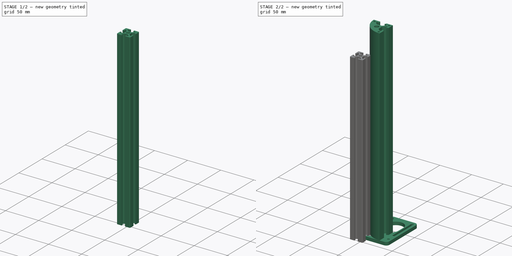
[diagram: build sequence overview — one tinted view per stage of 2, left to right]
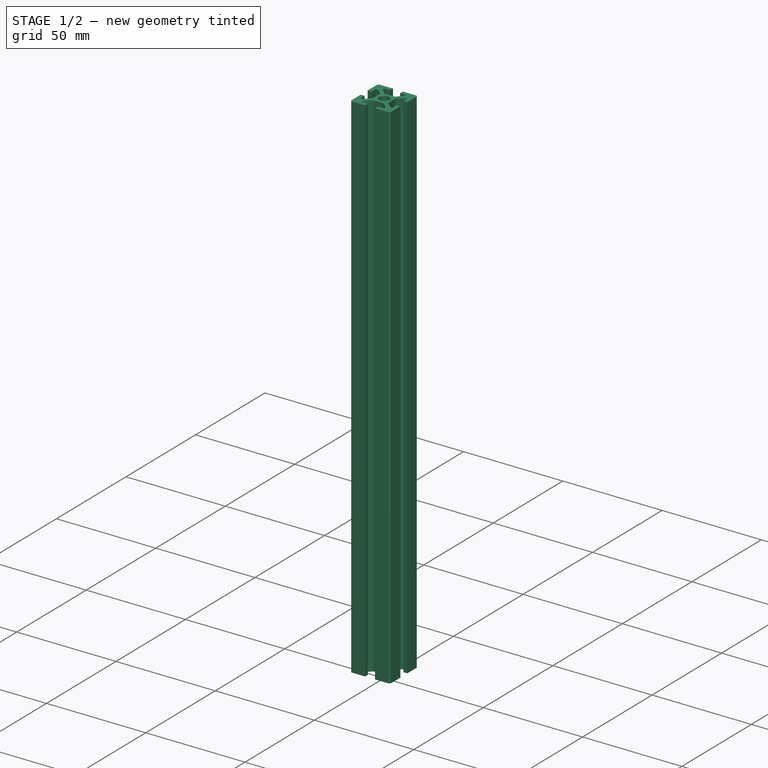
[diagram: stage 1 of 2 — iso view after this stage's code; geometry added in this stage tinted green]
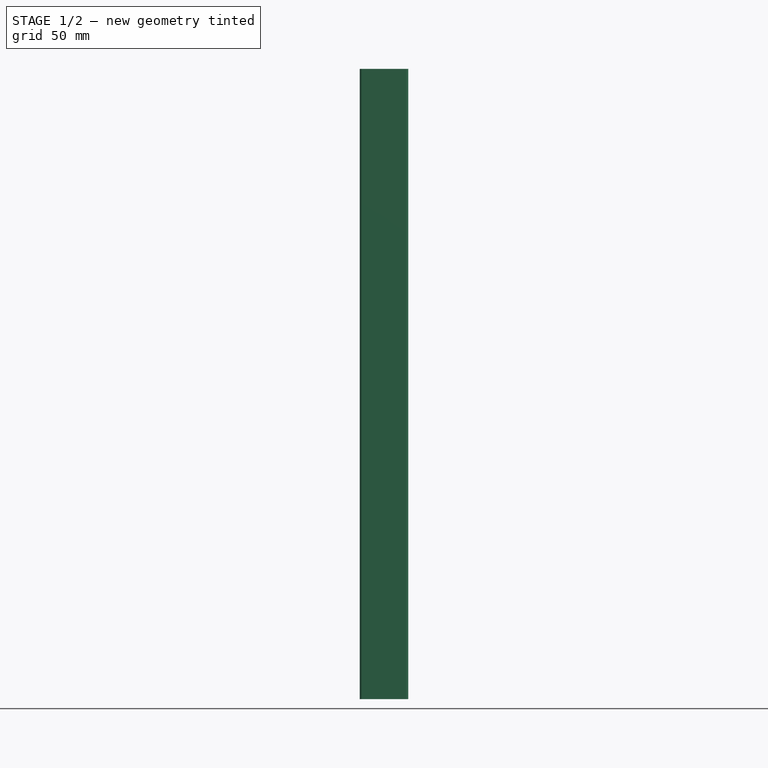
[diagram: stage 1 of 2 — front view after this stage's code; geometry added in this stage tinted green]
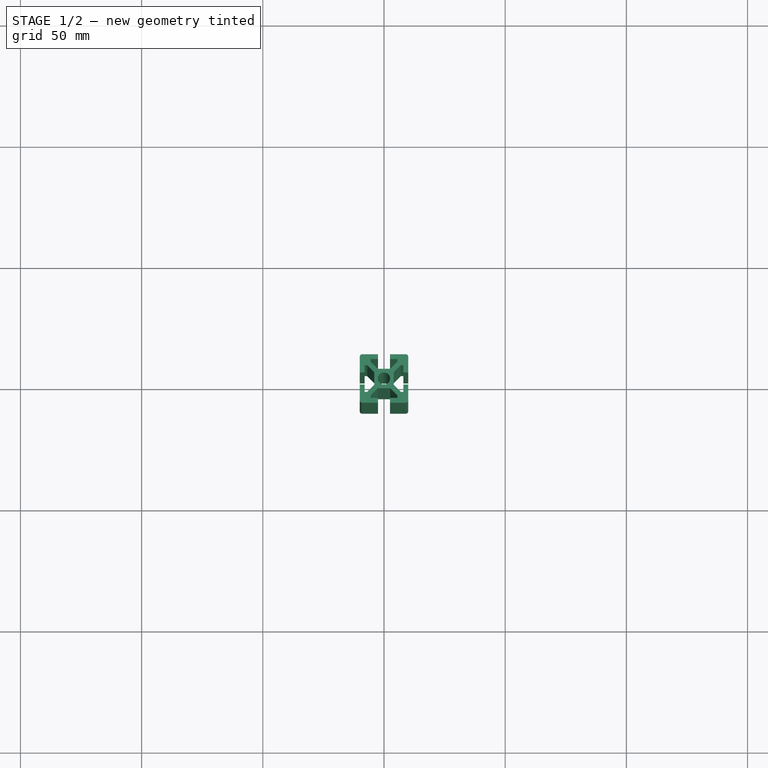
[diagram: stage 1 of 2 — top view after this stage's code; geometry added in this stage tinted green]
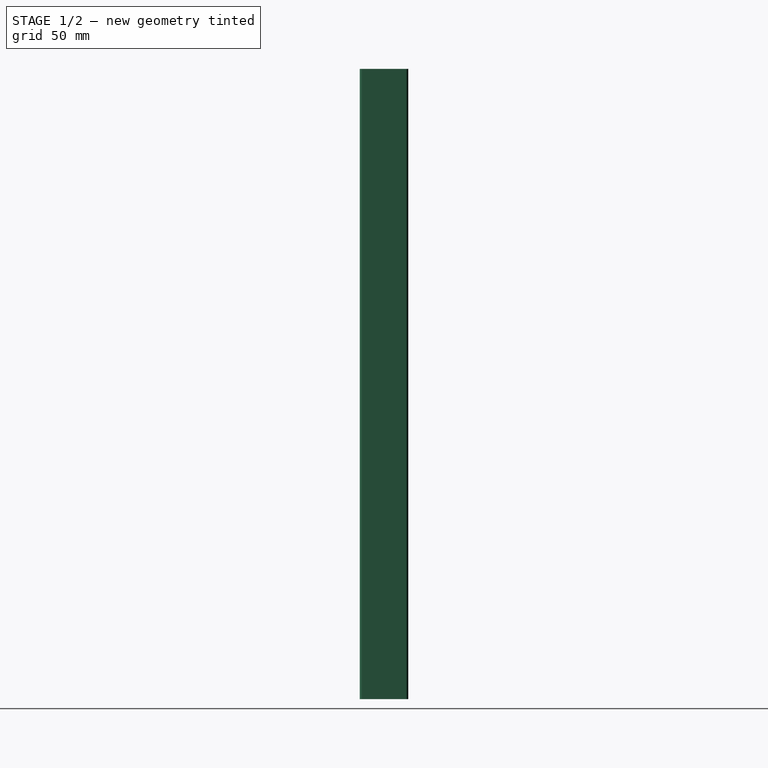
[diagram: stage 1 of 2 — right view after this stage's code; geometry added in this stage tinted green]
FCSTD DOCUMENT  (FreeCAD 0.18R16117 (Git))
Label: OtherParts
License: All rights reserved
LicenseURL: http://en.wikipedia.org/wiki/All_rights_reserved
objects: Sketcher::SketchObject×4, PartDesign::Pad×4, PartDesign::Body×4
note: 16 computed .brp shape members not serialized (recipe doc carries the construction recipe); baked Part::Feature solids carry a one-line shape summary decoded from their .brp

FEATURE [PartDesign::Body] Body001  label="profile3030R"
  Group = -> [Sketch003,Pad001]
  Origin = -> Origin001
  Tip = -> Pad001
FEATURE [Sketcher::SketchObject] Sketch004
  MapMode = 5
  Support = -> [XY_Plane002]
  sketch-geometry (12):
    g0: LineSegment StartX=-1 StartY=0 StartZ=0 EndX=0 EndY=0 EndZ=0
    g1: LineSegment StartX=-1 StartY=-0.63 StartZ=0 EndX=-0.741036 EndY=-0.63 EndZ=0
    g2: ArcOfCircle CenterX=-0.741036 CenterY=-0.78 CenterZ=0 NormalX=0 NormalY=0 NormalZ=1 AngleXU=0 Radius=0.15 StartAngle=0.124936 EndAngle=1.5708
    g3: ArcOfCircle CenterX=0.4 CenterY=-0.636697 CenterZ=0 NormalX=0 NormalY=0 NormalZ=1 AngleXU=0 Radius=1 StartAngle=3.26653 EndAngle=3.57129
    g4: ArcOfCircle CenterX=0 CenterY=-0.82 CenterZ=0 NormalX=0 NormalY=0 NormalZ=1 AngleXU=0 Radius=0.56 StartAngle=3.57129 EndAngle=5.85349
    g5: LineSegment [constr] StartX=0 StartY=0 StartZ=0 EndX=0 EndY=-1.38 EndZ=0
    g6: ArcOfCircle CenterX=-0.4 CenterY=-0.636697 CenterZ=0 NormalX=0 NormalY=0 NormalZ=1 AngleXU=0 Radius=1 StartAngle=5.85349 EndAngle=6.15825
    g7: ArcOfCircle CenterX=0.741036 CenterY=-0.78 CenterZ=0 NormalX=0 NormalY=0 NormalZ=1 AngleXU=0 Radius=0.15 StartAngle=1.5708 EndAngle=3.01666
    g8: LineSegment StartX=0.741036 StartY=-0.63 StartZ=0 EndX=1 EndY=-0.63 EndZ=0
    g9: LineSegment StartX=0 StartY=0 StartZ=0 EndX=1 EndY=0 EndZ=0
    g10: LineSegment StartX=-1 StartY=0 StartZ=0 EndX=-1 EndY=-0.63 EndZ=0
    g11: LineSegment StartX=1 StartY=0 StartZ=0 EndX=1 EndY=-0.63 EndZ=0
  constraints (34):
    c: Horizontal(g1)
    c: DistanceY(g1,g0) = 0.63
    c: Distance(g0) = 1
    c: Radius(g3) = 1
    c: Radius(g2) = 0.15
    c: Radius(g4) = 0.56
    c: DistanceX(g0,g3) = 0.4
    c: Tangent(g3,g2) = 1.5708
    c: Tangent(g4,g3) = -1.5708
    c: Vertical(g1,g0)
    c: Tangent(g2,g1) = 1.5708
    c: Coincident(g5,g0)
    c: PointOnObject(g4,g5)
    c: Vertical(g5)
    c: Horizontal(g8)
    c: Tangent(g8,g7) = 1.5708
    c: Tangent(g7,g6) = 1.5708
    c: DistanceX(g6,g0) = 0.4
    c: Radius(g7) = 0.15
    c: Horizontal(g1,g7)
    c: Coincident(g9,g0)
    c: Horizontal(g9)
    c: Distance(g9,g0) = 1
    c: Vertical(g9,g8)
    c: Radius(g6) = 1
    c: Tangent(g4,g6) = -1.5708
    c: PointOnObject(g5,g4)
    c: DistanceY(g5,g0) = 1.38
    c: Coincident(g10,g0)
    c: Coincident(g10,g1)
    c: Coincident(g11,g9)
    c: Coincident(g11,g8)
    c: Coincident(g0,g-1)
    c: Horizontal(g0)
FEATURE [PartDesign::Pad] Pad002
  Length = 6
  Length2 = 100
  Profile = -> Sketch004
  Type = 0
FEATURE [PartDesign::Body] Body002  label="GT2Belt"
  Group = -> [Sketch004,Pad002]
  Origin = -> Origin002
  Tip = -> Pad002
FEATURE [Sketcher::SketchObject] Sketch005  label="profile2020Sketch"
  MapMode = 5
  sketch-geometry (49):
    g0: LineSegment StartX=-4 StartY=-2.58579 StartZ=0 EndX=-4 EndY=2.58579 EndZ=0
    g1: LineSegment StartX=2.58579 StartY=4 StartZ=0 EndX=-2.58579 EndY=4 EndZ=0
    g2: LineSegment StartX=-4 StartY=2.58579 StartZ=0 EndX=-6.91421 EndY=5.5 EndZ=0
    g3: LineSegment StartX=-2.58579 StartY=4 StartZ=0 EndX=-5.5 EndY=6.91421 EndZ=0
    g4: LineSegment StartX=-6.91421 StartY=5.5 StartZ=0 EndX=-8 EndY=5.5 EndZ=0
    g5: LineSegment StartX=-8 StartY=5.5 StartZ=0 EndX=-8 EndY=2.5 EndZ=0
    g6: LineSegment StartX=-5.5 StartY=6.91421 StartZ=0 EndX=-5.5 EndY=8 EndZ=0
    g7: LineSegment StartX=-5.5 StartY=8 StartZ=0 EndX=-2.5 EndY=8 EndZ=0
    g8: LineSegment StartX=-8 StartY=2.5 StartZ=0 EndX=-10 EndY=2.5 EndZ=0
    g9: LineSegment StartX=-2.5 StartY=8 StartZ=0 EndX=-2.5 EndY=10 EndZ=0
    g10: LineSegment StartX=-2.5 StartY=10 StartZ=0 EndX=-9 EndY=10 EndZ=0
    g11: LineSegment StartX=-10 StartY=2.5 StartZ=0 EndX=-10 EndY=9 EndZ=0
    g12: ArcOfCircle CenterX=-9 CenterY=9 CenterZ=0 NormalX=0 NormalY=0 NormalZ=1 AngleXU=0 Radius=1 StartAngle=1.5708 EndAngle=3.14159
    g13: Circle CenterX=0 CenterY=0 CenterZ=0 NormalX=0 NormalY=0 NormalZ=1 AngleXU=0 Radius=2.5
    g14: LineSegment StartX=4 StartY=2.58579 StartZ=0 EndX=4 EndY=-2.58579 EndZ=0
    g15: LineSegment StartX=2.58579 StartY=4 StartZ=0 EndX=5.5 EndY=6.91421 EndZ=0
    g16: LineSegment StartX=5.5 StartY=6.91421 StartZ=0 EndX=5.5 EndY=8 EndZ=0
    g17: LineSegment StartX=5.5 StartY=8 StartZ=0 EndX=2.5 EndY=8 EndZ=0
    g18: LineSegment StartX=2.5 StartY=8 StartZ=0 EndX=2.5 EndY=10 EndZ=0
    g19: LineSegment StartX=4 StartY=2.58579 StartZ=0 EndX=6.91421 EndY=5.5 EndZ=0
    g20: LineSegment StartX=6.91421 StartY=5.5 StartZ=0 EndX=8 EndY=5.5 EndZ=0
    g21: LineSegment StartX=8 StartY=5.5 StartZ=0 EndX=8 EndY=2.5 EndZ=0
    g22: LineSegment StartX=8 StartY=2.5 StartZ=0 EndX=10 EndY=2.5 EndZ=0
    g23: LineSegment StartX=10 StartY=2.5 StartZ=0 EndX=10 EndY=9 EndZ=0
    g24: LineSegment StartX=2.5 StartY=10 StartZ=0 EndX=9 EndY=10 EndZ=0
    g25: ArcOfCircle CenterX=9 CenterY=9 CenterZ=0 NormalX=0 NormalY=0 NormalZ=1 AngleXU=0 Radius=1 StartAngle=5.30563e-07 EndAngle=1.5708
    g26: LineSegment StartX=4 StartY=-2.58579 StartZ=0 EndX=6.91421 EndY=-5.5 EndZ=0
    g27: LineSegment StartX=6.91421 StartY=-5.5 StartZ=0 EndX=8 EndY=-5.5 EndZ=0
    g28: LineSegment StartX=8 StartY=-5.5 StartZ=0 EndX=8 EndY=-2.5 EndZ=0
    g29: LineSegment StartX=8 StartY=-2.5 StartZ=0 EndX=10 EndY=-2.5 EndZ=0
    g30: LineSegment StartX=10 StartY=-2.5 StartZ=0 EndX=10 EndY=-9 EndZ=0
    g31: LineSegment StartX=9 StartY=-10 StartZ=0 EndX=2.5 EndY=-10 EndZ=0
    g32: LineSegment StartX=2.5 StartY=-10 StartZ=0 EndX=2.5 EndY=-8 EndZ=0
    g33: LineSegment StartX=2.5 StartY=-8 StartZ=0 EndX=5.5 EndY=-8 EndZ=0
    g34: LineSegment StartX=5.5 StartY=-8 StartZ=0 EndX=5.5 EndY=-6.91421 EndZ=0
    g35: LineSegment StartX=5.5 StartY=-6.91421 StartZ=0 EndX=2.58579 EndY=-4 EndZ=0
    g36: LineSegment StartX=2.58579 StartY=-4 StartZ=0 EndX=-2.58579 EndY=-4 EndZ=0
    g37: LineSegment StartX=-2.58579 StartY=-4 StartZ=0 EndX=-5.5 EndY=-6.91421 EndZ=0
    g38: LineSegment StartX=-5.5 StartY=-6.91421 StartZ=0 EndX=-5.5 EndY=-8 EndZ=0
    g39: LineSegment StartX=-5.5 StartY=-8 StartZ=0 EndX=-2.5 EndY=-8 EndZ=0
    g40: LineSegment StartX=-2.5 StartY=-8 StartZ=0 EndX=-2.5 EndY=-10 EndZ=0
    g41: LineSegment StartX=-2.5 StartY=-10 StartZ=0 EndX=-9 EndY=-10 EndZ=0
    g42: ArcOfCircle CenterX=9 CenterY=-9 CenterZ=0 NormalX=0 NormalY=0 NormalZ=1 AngleXU=0 Radius=1 StartAngle=4.71239 EndAngle=6.28318
    g43: LineSegment StartX=-4 StartY=-2.58579 StartZ=0 EndX=-6.91421 EndY=-5.5 EndZ=0
    g44: LineSegment StartX=-6.91421 StartY=-5.5 StartZ=0 EndX=-8 EndY=-5.5 EndZ=0
    g45: LineSegment StartX=-8 StartY=-5.5 StartZ=0 EndX=-8 EndY=-2.5 EndZ=0
    g46: LineSegment StartX=-8 StartY=-2.5 StartZ=0 EndX=-10 EndY=-2.5 EndZ=0
    g47: LineSegment StartX=-10 StartY=-2.5 StartZ=0 EndX=-10 EndY=-9 EndZ=0
    g48: ArcOfCircle CenterX=-9 CenterY=-9 CenterZ=0 NormalX=0 NormalY=0 NormalZ=1 AngleXU=0 Radius=1 StartAngle=3.14159 EndAngle=4.71239
  constraints (114):
    c: DistanceX(g-1,g0) = -4
    c: Vertical(g0)
    c: Equal(g0,g1)
    c: Coincident(g0,g2)
    c: Angle(g2,g0) = 2.35619
    c: Coincident(g3,g1)
    c: Parallel(g2,g3)
    c: Equal(g3,g2)
    c: Coincident(g4,g2)
    c: Horizontal(g4)
    c: Coincident(g4,g5)
    c: Vertical(g5)
    c: Coincident(g6,g3)
    c: Vertical(g6)
    c: Equal(g4,g6)
    c: Coincident(g7,g6)
    c: Horizontal(g7)
    c: Equal(g7,g5)
    c: Coincident(g8,g5)
    c: Horizontal(g8)
    c: Coincident(g9,g7)
    c: Vertical(g9)
    c: DistanceX(g-1,g7) = -2.5
    c: DistanceY(g9) = 2
    c: Coincident(g10,g9)
    c: Horizontal(g10)
    c: Coincident(g11,g8)
    c: Vertical(g11)
    c: Equal(g10,g11)
    c: DistanceY(g-1,g10) = 10
    c: Coincident(g12,g11)
    c: Radius(g12) = 1
    c: Tangent(g12,g11)
    c: Equal(g8,g9)
    c: Distance(g1,g0) = 2
    c: DistanceX(g-1,g3) = -5.5
    c: Coincident(g13,g-1)
    c: Radius(g13) = 2.5
    c: DistanceY(g-1,g1) = 4
    c: Symmetric(g14,g0,g-2)
    c: Symmetric(g0,g14,g-2)
    c: Coincident(g15,g1)
    c: Symmetric(g1,g1,g-2)
    c: Symmetric(g15,g3,g-2)
    c: Coincident(g16,g15)
    c: Symmetric(g16,g6,g-2)
    c: Coincident(g17,g16)
    c: Symmetric(g17,g7,g-2)
    c: Coincident(g18,g17)
    c: Symmetric(g18,g9,g-2)
    c: Coincident(g19,g20)
    c: Coincident(g20,g21)
    c: Coincident(g21,g22)
    c: Coincident(g22,g23)
    c: Coincident(g19,g14)
    c: Symmetric(g19,g2,g-2)
    c: Symmetric(g20,g4,g-2)
    c: Symmetric(g21,g5,g-2)
    c: Symmetric(g22,g8,g-2)
    c: Symmetric(g23,g11,g-2)
    c: Coincident(g24,g18)
    c: Symmetric(g24,g10,g-2)
    c: Tangent(g25,g24) = 1.5708
    c: Radius(g25) = 1
    c: Coincident(g25,g23)
    c: Coincident(g26,g27)
    c: Coincident(g27,g28)
    c: Coincident(g28,g29)
    c: Coincident(g29,g30)
    c: Coincident(g26,g14)
    c: Symmetric(g26,g19,g-1)
    c: Symmetric(g27,g20,g-1)
    c: Symmetric(g28,g21,g-1)
    c: Symmetric(g29,g22,g-1)
    c: Symmetric(g30,g23,g-1)
    c: Coincident(g31,g32)
    c: Coincident(g32,g33)
    c: Coincident(g33,g34)
    c: Coincident(g34,g35)
    c: Coincident(g35,g36)
    c: Coincident(g36,g37)
    c: Coincident(g37,g38)
    c: Coincident(g38,g39)
    c: Coincident(g39,g40)
    c: Coincident(g40,g41)
    c: Symmetric(g40,g9,g-1)
    c: Symmetric(g39,g7,g-1)
    c: Symmetric(g38,g6,g-1)
    c: Symmetric(g37,g3,g-1)
    c: Symmetric(g36,g1,g-1)
    c: Symmetric(g35,g1,g-1)
    c: Symmetric(g34,g15,g-1)
    c: Symmetric(g33,g16,g-1)
    c: Symmetric(g32,g17,g-1)
    c: Symmetric(g31,g18,g-1)
    c: Symmetric(g31,g24,g-1)
    c: Radius(g42) = 1
    c: Coincident(g42,g31)
    c: Coincident(g42,g30)
    c: Symmetric(g41,g10,g-1)
    c: Coincident(g43,g44)
    c: Coincident(g44,g45)
    c: Coincident(g45,g46)
    c: Coincident(g46,g47)
    c: Coincident(g0,g43)
    c: Symmetric(g43,g2,g-1)
    c: Symmetric(g44,g4,g-1)
    c: Symmetric(g45,g5,g-1)
    c: Symmetric(g46,g8,g-1)
    c: Symmetric(g47,g11,g-1)
    c: Coincident(g48,g47)
    c: Coincident(g48,g41)
    c: Tangent(g48,g47)
    c: Tangent(g12,g10) = -1.5708
FEATURE [PartDesign::Pad] Pad003
  Length = 260
  Length2 = 100
  Profile = -> Sketch005
  Type = 0
FEATURE [PartDesign::Body] Body003  label="profile2020"
  Group = -> [Sketch005,Pad003]
  Origin = -> Origin003
  Tip = -> Pad003
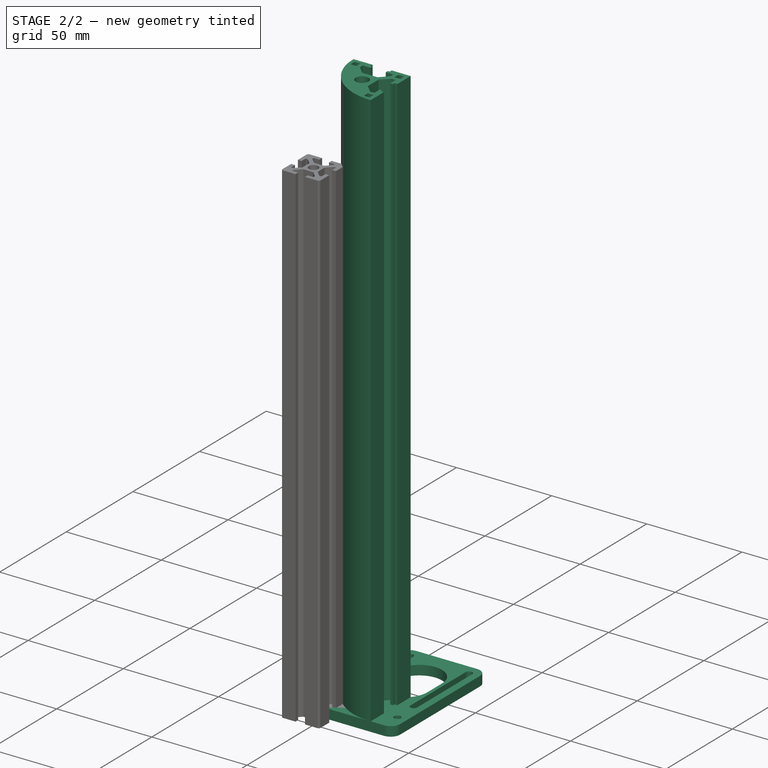
[diagram: stage 2 of 2 — iso view after this stage's code; geometry added in this stage tinted green]
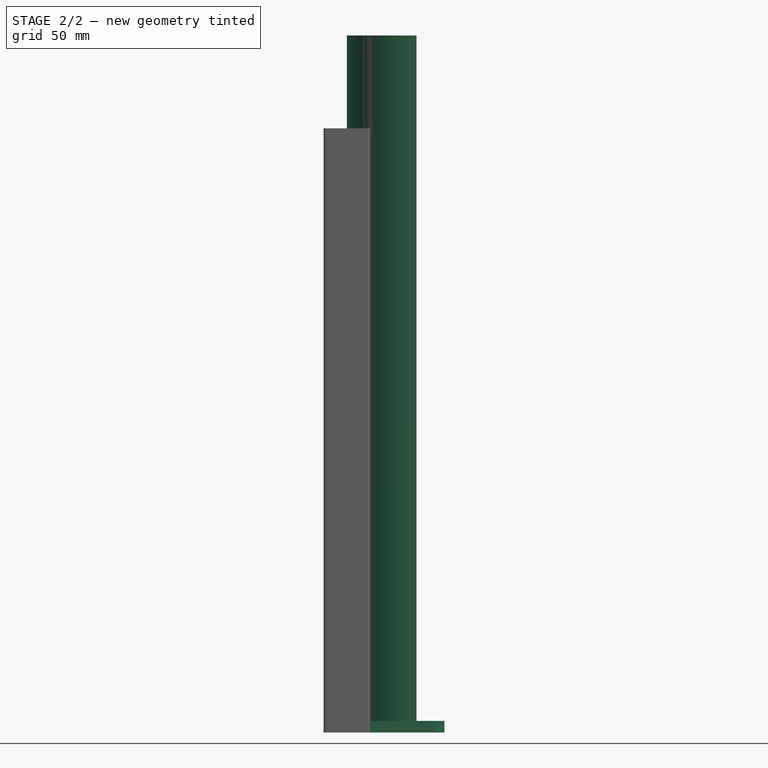
[diagram: stage 2 of 2 — front view after this stage's code; geometry added in this stage tinted green]
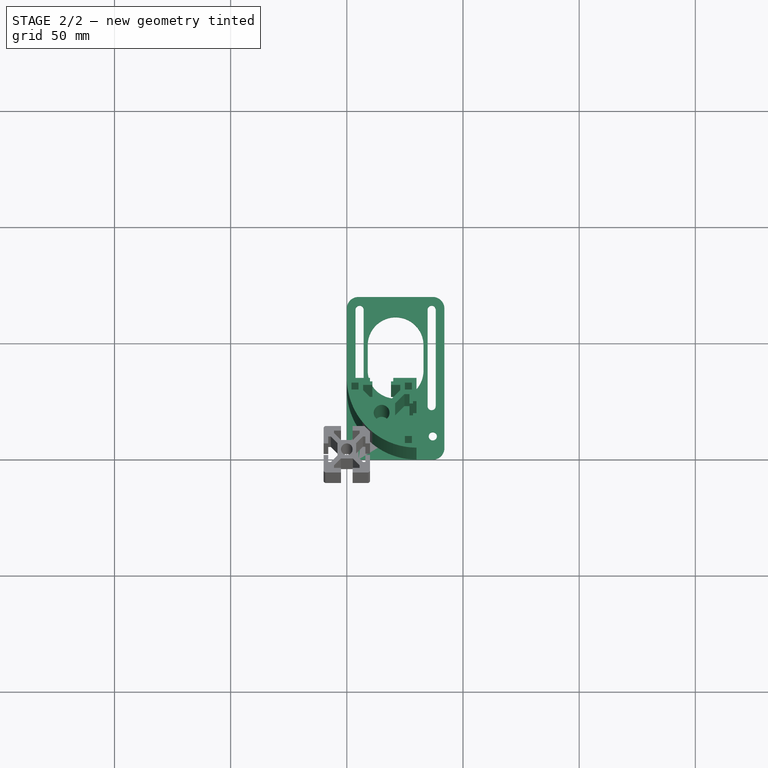
[diagram: stage 2 of 2 — top view after this stage's code; geometry added in this stage tinted green]
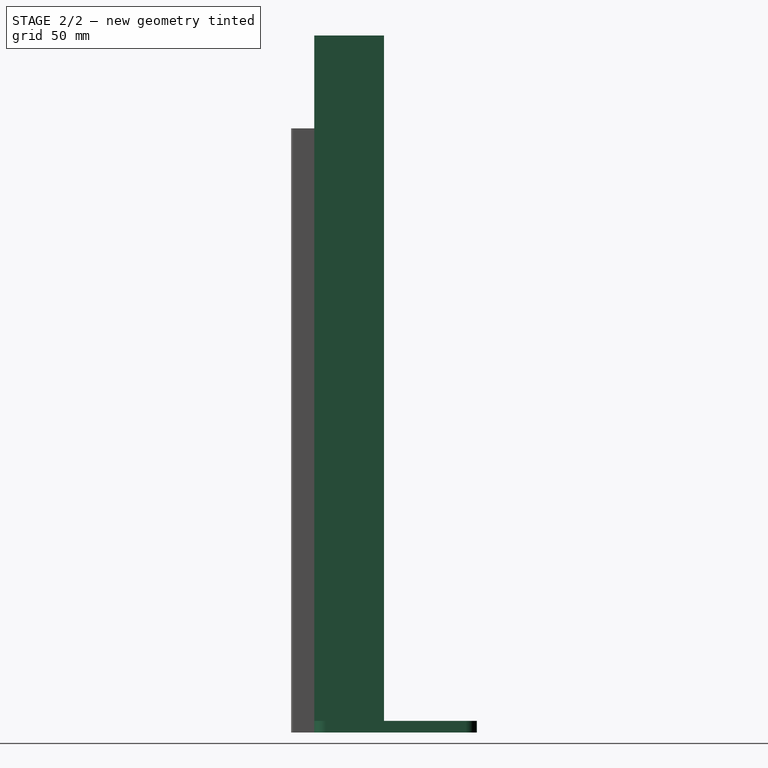
[diagram: stage 2 of 2 — right view after this stage's code; geometry added in this stage tinted green]
FEATURE [Sketcher::SketchObject] Sketch  label="NemaMountSketch"
  MapMode = 5
  Support = -> [XY_Plane]
  sketch-geometry (26):
    g0: LineSegment StartX=5 StartY=70 StartZ=0 EndX=37 EndY=70 EndZ=0
    g1: ArcOfCircle CenterX=37 CenterY=65 CenterZ=0 NormalX=0 NormalY=0 NormalZ=1 AngleXU=0 Radius=5 StartAngle=1e-16 EndAngle=1.5708
    g2: LineSegment StartX=42 StartY=65 StartZ=0 EndX=42 EndY=5 EndZ=0
    g3: ArcOfCircle CenterX=37 CenterY=5 CenterZ=0 NormalX=0 NormalY=0 NormalZ=1 AngleXU=0 Radius=5 StartAngle=4.71239 EndAngle=6.28319
    g4: LineSegment StartX=37 StartY=0 StartZ=0 EndX=5 EndY=0 EndZ=0
    g5: ArcOfCircle CenterX=5 CenterY=5 CenterZ=0 NormalX=0 NormalY=0 NormalZ=1 AngleXU=0 Radius=5 StartAngle=3.14159 EndAngle=4.71239
    g6: LineSegment StartX=0 StartY=5 StartZ=0 EndX=0 EndY=65 EndZ=0
    g7: ArcOfCircle CenterX=5 CenterY=65 CenterZ=0 NormalX=0 NormalY=0 NormalZ=1 AngleXU=0 Radius=5 StartAngle=1.5708 EndAngle=3.14159
    g8: LineSegment [constr] StartX=0 StartY=20 StartZ=0 EndX=42 EndY=20 EndZ=0
    g9: ArcOfCircle CenterX=5.5 CenterY=64.5 CenterZ=0 NormalX=0 NormalY=0 NormalZ=1 AngleXU=0 Radius=1.75 StartAngle=0 EndAngle=3.14159
    g10: ArcOfCircle CenterX=5.5 CenterY=23 CenterZ=0 NormalX=0 NormalY=0 NormalZ=1 AngleXU=0 Radius=1.75 StartAngle=3.14159 EndAngle=6.28319
    g11: LineSegment StartX=3.75 StartY=64.5 StartZ=0 EndX=3.75 EndY=23 EndZ=0
    g12: LineSegment StartX=7.25 StartY=64.5 StartZ=0 EndX=7.25 EndY=23 EndZ=0
    g13: LineSegment [constr] StartX=21 StartY=70 StartZ=0 EndX=21 EndY=20 EndZ=0
    g14: ArcOfCircle CenterX=36.5 CenterY=64.5 CenterZ=0 NormalX=0 NormalY=0 NormalZ=1 AngleXU=0 Radius=1.75 StartAngle=3.3e-15 EndAngle=3.14159
    g15: ArcOfCircle CenterX=36.5 CenterY=23 CenterZ=0 NormalX=0 NormalY=0 NormalZ=1 AngleXU=0 Radius=1.75 StartAngle=3.14159 EndAngle=6.28319
    g16: LineSegment StartX=38.25 StartY=64.5 StartZ=0 EndX=38.25 EndY=23 EndZ=0
    g17: LineSegment StartX=34.75 StartY=64.5 StartZ=0 EndX=34.75 EndY=23 EndZ=0
    g18: Circle CenterX=5 CenterY=10 CenterZ=0 NormalX=0 NormalY=0 NormalZ=1 AngleXU=0 Radius=1.75
    g19: Circle CenterX=37 CenterY=10 CenterZ=0 NormalX=0 NormalY=0 NormalZ=1 AngleXU=0 Radius=1.75
    g20: Circle CenterX=21 CenterY=10 CenterZ=0 NormalX=0 NormalY=0 NormalZ=1 AngleXU=0 Radius=1.75
    g21: ArcOfCircle CenterX=21 CenterY=49.25 CenterZ=0 NormalX=0 NormalY=0 NormalZ=1 AngleXU=0 Radius=12 StartAngle=1e-16 EndAngle=3.14159
    g22: ArcOfCircle CenterX=21 CenterY=38.25 CenterZ=0 NormalX=0 NormalY=0 NormalZ=1 AngleXU=0 Radius=12 StartAngle=3.14159 EndAngle=6.28319
    g23: LineSegment StartX=9 StartY=49.25 StartZ=0 EndX=9 EndY=38.25 EndZ=0
    g24: LineSegment StartX=33 StartY=49.25 StartZ=0 EndX=33 EndY=38.25 EndZ=0
    g25: LineSegment [constr] StartX=9 StartY=43.75 StartZ=0 EndX=5.5 EndY=43.75 EndZ=0
  constraints (65):
    c: Horizontal(g0)
    c: Tangent(g0,g1) = 1.5708
    c: Tangent(g1,g2) = 1.5708
    c: Tangent(g2,g3) = 1.5708
    c: Tangent(g3,g4) = 1.5708
    c: Tangent(g4,g5) = 1.5708
    c: Tangent(g5,g6) = 1.5708
    c: Tangent(g6,g7) = 1.5708
    c: Tangent(g7,g0) = 1.5708
    c: Vertical(g6)
    c: Vertical(g2)
    c: Horizontal(g4)
    c: Radius(g7) = 5
    c: Equal(g7,g1)
    c: Equal(g7,g3)
    c: Equal(g7,g5)
    c: PointOnObject(g4,g-1)
    c: PointOnObject(g5,g-2)
    c: DistanceX(g5,g2) = 42
    c: PointOnObject(g8,g6)
    c: PointOnObject(g8,g2)
    c: DistanceY(g-1,g8) = 20
    c: DistanceY(g8,g0) = 50
    c: Tangent(g9,g12) = 1.5708
    c: Tangent(g9,g11) = -1.5708
    c: Tangent(g11,g10) = -1.5708
    c: Tangent(g12,g10) = 1.5708
    c: Vertical(g11)
    c: Equal(g9,g10)
    c: Diameter(g9) = 3.5
    c: PointOnObject(g13,g0)
    c: Vertical(g13)
    c: Symmetric(g8,g8,g13)
    c: Horizontal(g8)
    c: Tangent(g14,g17) = -1.5708
    c: Tangent(g14,g16) = 1.5708
    c: Tangent(g16,g15) = 1.5708
    c: Tangent(g17,g15) = -1.5708
    c: Vertical(g16)
    c: Diameter(g14) = 3.5
    c: DistanceX(g10,g15) = 31
    c: Symmetric(g10,g15,g13)
    c: DistanceY(g9,g0) = 5.5
    c: Symmetric(g14,g9,g13)
    c: Diameter(g18) = 3.5
    c: Equal(g18,g19)
    c: Equal(g18,g20)
    c: Symmetric(g18,g19,g20)
    c: Horizontal(g18,g20)
    c: DistanceX(g5,g18) = 5
    c: DistanceX(g19,g2) = 5
    c: DistanceY(g4,g18) = 10
    c: Tangent(g21,g24) = 1.5708
    c: Tangent(g21,g23) = -1.5708
    c: Tangent(g23,g22) = -1.5708
    c: Tangent(g24,g22) = 1.5708
    c: Vertical(g23)
    c: Equal(g21,g22)
    c: PointOnObject(g21,g13)
    c: DistanceY(g22,g21) = 11
    c: Diameter(g21) = 24
    c: Horizontal(g25)
    c: Symmetric(g21,g22,g25)
    c: Symmetric(g9,g10,g25)
    c: DistanceY(g8,g10) = 3
FEATURE [PartDesign::Pad] Pad  label="NemaMountPad"
  Length = 5
  Length2 = 100
  Profile = -> Sketch
  Type = 0
FEATURE [PartDesign::Body] Body  label="NemaMount"
  Group = -> [Sketch,Pad]
  Origin = -> Origin
  Tip = -> Pad
FEATURE [Sketcher::SketchObject] Sketch003
  MapMode = 5
  Support = -> [XY_Plane001]
  sketch-geometry (44):
    g0: ArcOfCircle CenterX=30 CenterY=30 CenterZ=0 NormalX=0 NormalY=0 NormalZ=1 AngleXU=0 Radius=30 StartAngle=3.14159 EndAngle=4.71239
    g1: LineSegment StartX=0 StartY=30 StartZ=0 EndX=10 EndY=30 EndZ=0
    g2: LineSegment StartX=30 StartY=0 StartZ=0 EndX=30 EndY=10 EndZ=0
    g3: LineSegment StartX=10 StartY=30 StartZ=0 EndX=10 EndY=28.5 EndZ=0
    g4: LineSegment StartX=10 StartY=28.5 StartZ=0 EndX=11 EndY=28.5 EndZ=0
    g5: LineSegment StartX=11 StartY=28.5 StartZ=0 EndX=11 EndY=27 EndZ=0
    g6: LineSegment StartX=11 StartY=27 StartZ=0 EndX=7 EndY=27 EndZ=0
    g7: LineSegment StartX=7 StartY=27 StartZ=0 EndX=7 EndY=24.8 EndZ=0
    g8: LineSegment StartX=7 StartY=24.8 StartZ=0 EndX=11 EndY=20.8 EndZ=0
    g9: LineSegment StartX=11 StartY=20.8 StartZ=0 EndX=19 EndY=20.8 EndZ=0
    g10: LineSegment StartX=19 StartY=20.8 StartZ=0 EndX=23 EndY=24.8 EndZ=0
    g11: LineSegment StartX=23 StartY=24.8 StartZ=0 EndX=23 EndY=27 EndZ=0
    g12: LineSegment StartX=23 StartY=27 StartZ=0 EndX=19 EndY=27 EndZ=0
    g13: LineSegment StartX=19 StartY=27 StartZ=0 EndX=19 EndY=28.5 EndZ=0
    g14: LineSegment StartX=19 StartY=28.5 StartZ=0 EndX=20 EndY=28.5 EndZ=0
    g15: LineSegment StartX=20 StartY=28.5 StartZ=0 EndX=20 EndY=30 EndZ=0
    g16: LineSegment StartX=20 StartY=30 StartZ=0 EndX=30 EndY=30 EndZ=0
    g17: LineSegment StartX=30 StartY=30 StartZ=0 EndX=30 EndY=20 EndZ=0
    g18: LineSegment StartX=30 StartY=20 StartZ=0 EndX=28.5 EndY=20 EndZ=0
    g19: LineSegment StartX=28.5 StartY=20 StartZ=0 EndX=28.5 EndY=19 EndZ=0
    g20: LineSegment StartX=28.5 StartY=19 StartZ=0 EndX=27 EndY=19 EndZ=0
    g21: LineSegment StartX=27 StartY=19 StartZ=0 EndX=27 EndY=23 EndZ=0
    g22: LineSegment StartX=27 StartY=23 StartZ=0 EndX=24.8 EndY=23 EndZ=0
    g23: LineSegment StartX=24.8 StartY=23 StartZ=0 EndX=20.8 EndY=19 EndZ=0
    g24: LineSegment StartX=20.8 StartY=19 StartZ=0 EndX=20.8 EndY=11 EndZ=0
    g25: LineSegment StartX=20.8 StartY=11 StartZ=0 EndX=24.8 EndY=7 EndZ=0
    g26: LineSegment StartX=24.8 StartY=7 StartZ=0 EndX=27 EndY=7 EndZ=0
    g27: LineSegment StartX=27 StartY=7 StartZ=0 EndX=27 EndY=11 EndZ=0
    g28: LineSegment StartX=27 StartY=11 StartZ=0 EndX=28.5 EndY=11 EndZ=0
    g29: LineSegment StartX=28.5 StartY=11 StartZ=0 EndX=28.5 EndY=10 EndZ=0
    g30: LineSegment StartX=28.5 StartY=10 StartZ=0 EndX=30 EndY=10 EndZ=0
    g31: Circle CenterX=15 CenterY=15 CenterZ=0 NormalX=0 NormalY=0 NormalZ=1 AngleXU=0 Radius=3.4
    g32: LineSegment StartX=2 StartY=28 StartZ=0 EndX=5 EndY=28 EndZ=0
    g33: LineSegment StartX=5 StartY=28 StartZ=0 EndX=5 EndY=25 EndZ=0
    g34: LineSegment StartX=5 StartY=25 StartZ=0 EndX=2 EndY=25 EndZ=0
    g35: LineSegment StartX=2 StartY=25 StartZ=0 EndX=2 EndY=28 EndZ=0
    g36: LineSegment StartX=25 StartY=28 StartZ=0 EndX=28 EndY=28 EndZ=0
    g37: LineSegment StartX=28 StartY=28 StartZ=0 EndX=28 EndY=25 EndZ=0
    g38: LineSegment StartX=28 StartY=25 StartZ=0 EndX=25 EndY=25 EndZ=0
    g39: LineSegment StartX=25 StartY=25 StartZ=0 EndX=25 EndY=28 EndZ=0
    g40: LineSegment StartX=25 StartY=5 StartZ=0 EndX=28 EndY=5 EndZ=0
    g41: LineSegment StartX=28 StartY=5 StartZ=0 EndX=28 EndY=2 EndZ=0
    g42: LineSegment StartX=28 StartY=2 StartZ=0 EndX=25 EndY=2 EndZ=0
    g43: LineSegment StartX=25 StartY=2 StartZ=0 EndX=25 EndY=5 EndZ=0
  constraints (134):
    c: Coincident(g1,g0)
    c: Perpendicular(g0,g1)
    c: Horizontal(g1)
    c: Coincident(g2,g0)
    c: Vertical(g2)
    c: Perpendicular(g0,g2)
    c: Radius(g0) = 30
    c: Distance(g1) = 10
    c: Equal(g1,g2)
    c: Coincident(g3,g1)
    c: Vertical(g3)
    c: Coincident(g4,g3)
    c: Horizontal(g4)
    c: Coincident(g5,g4)
    c: Vertical(g5)
    c: Coincident(g6,g5)
    c: Horizontal(g6)
    c: Coincident(g7,g6)
    c: Vertical(g7)
    c: Coincident(g8,g7)
    c: Coincident(g9,g8)
    c: Horizontal(g9)
    c: Vertical(g11)
    c: Coincident(g12,g11)
    c: Horizontal(g12)
    c: Vertical(g13)
    c: Horizontal(g14)
    c: Coincident(g15,g14)
    c: Vertical(g15)
    c: Horizontal(g16)
    c: Equal(g3,g15)
    c: Equal(g4,g14)
    c: Coincident(g14,g13)
    c: Coincident(g16,g15)
    c: Equal(g5,g13)
    c: Coincident(g13,g12)
    c: Equal(g6,g12)
    c: Equal(g7,g11)
    c: Coincident(g10,g11)
    c: Equal(g16,g1)
    c: Distance(g3) = 1.5
    c: Distance(g5) = 1.5
    c: Distance(g9) = 8
    c: Distance(g1,g15) = 10
    c: Distance(g4,g13) = 8
    c: Equal(g8,g10)
    c: Coincident(g9,g10)
    c: Horizontal(g1,g15)
    c: Distance(g6) = 4
    c: Distance(g8,g1) = 9.2
    c: PointOnObject(g0,g-2)
    c: PointOnObject(g0,g-1)
    c: Coincident(g17,g0)
    c: Vertical(g17)
    c: Coincident(g17,g18)
    c: Horizontal(g18)
    c: Coincident(g18,g19)
    c: Vertical(g19)
    c: Coincident(g19,g20)
    c: Horizontal(g20)
    c: Coincident(g20,g21)
    c: Vertical(g21)
    c: Coincident(g21,g22)
    c: Horizontal(g22)
    c: Coincident(g22,g23)
    c: Coincident(g23,g24)
    c: Vertical(g24)
    c: Coincident(g24,g25)
    c: Coincident(g25,g26)
    c: Horizontal(g26)
    c: Coincident(g26,g27)
    c: Vertical(g27)
    c: Coincident(g27,g28)
    c: Horizontal(g28)
    c: Coincident(g28,g29)
    c: Vertical(g29)
    c: Coincident(g29,g30)
    c: Horizontal(g30)
    c: Coincident(g30,g2)
    c: Equal(g17,g1)
    c: Equal(g17,g2)
    c: Equal(g3,g18)
    c: Equal(g19,g4)
    c: Equal(g20,g5)
    c: Equal(g6,g21)
    c: Equal(g7,g22)
    c: Equal(g24,g9)
    c: Equal(g8,g23)
    c: Equal(g23,g25)
    c: Equal(g22,g26)
    c: Equal(g21,g27)
    c: Equal(g20,g28)
    c: Equal(g29,g19)
    c: Equal(g30,g18)
    c: Angle(g8,g7) = 2.35619
    c: DistanceX(g31) = 15
    c: DistanceY(g31) = 15
    c: Diameter(g31) = 6.8
    c: Coincident(g32,g33)
    c: Coincident(g33,g34)
    c: Coincident(g34,g35)
    c: Coincident(g35,g32)
    c: Horizontal(g32)
    c: Horizontal(g34)
    c: Vertical(g33)
    c: Vertical(g35)
    c: Equal(g32,g35)
    c: Distance(g32) = 3
    c: Distance(g32,g1) = 2
    c: DistanceX(g-1,g32) = 2
    c: Coincident(g36,g37)
    c: Coincident(g37,g38)
    c: Coincident(g38,g39)
    c: Coincident(g39,g36)
    c: Horizontal(g36)
    c: Horizontal(g38)
    c: Vertical(g37)
    c: Vertical(g39)
    c: Coincident(g40,g41)
    c: Coincident(g41,g42)
    c: Coincident(g42,g43)
    c: Coincident(g43,g40)
    c: Horizontal(g40)
    c: Horizontal(g42)
    c: Vertical(g41)
    c: Vertical(g43)
    c: Equal(g36,g37)
    c: Equal(g40,g41)
    c: Equal(g32,g36)
    c: Equal(g32,g40)
    c: Distance(g36,g16) = 2
    c: Distance(g36,g17) = 2
    c: Distance(g41,g2) = 2
    c: Distance(g41,g-1) = 2
FEATURE [PartDesign::Pad] Pad001
  Length = 300
  Length2 = 100
  Profile = -> Sketch003
  Type = 0
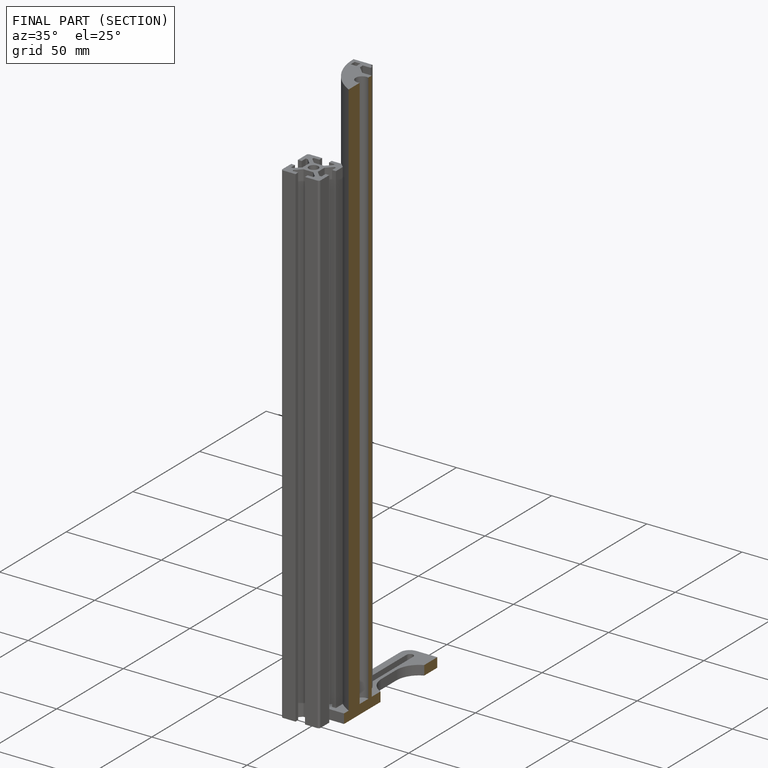
[diagram: finished part — half-section view (interior)]
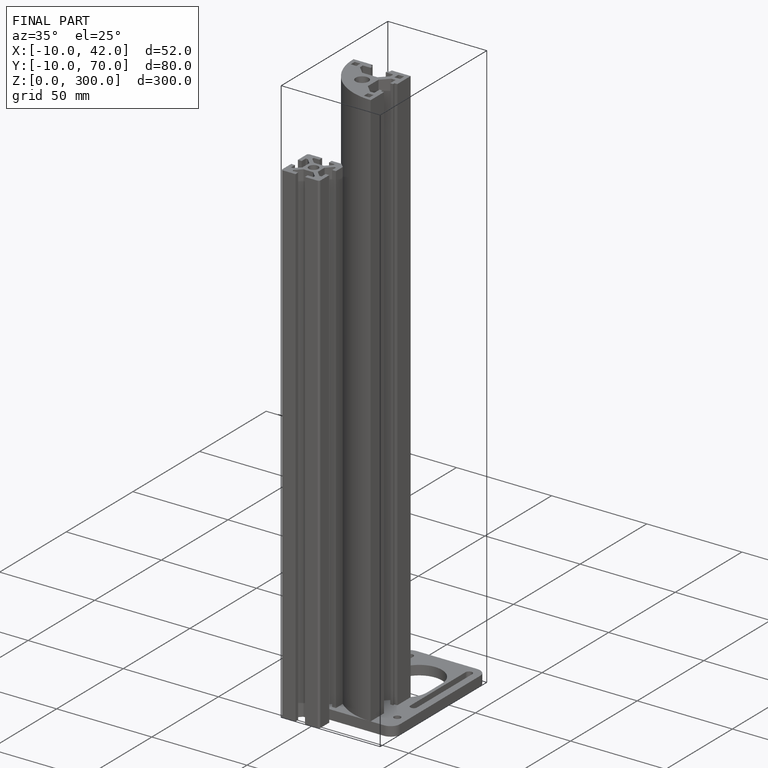
[diagram: finished part — iso view with bounding-box wireframe]
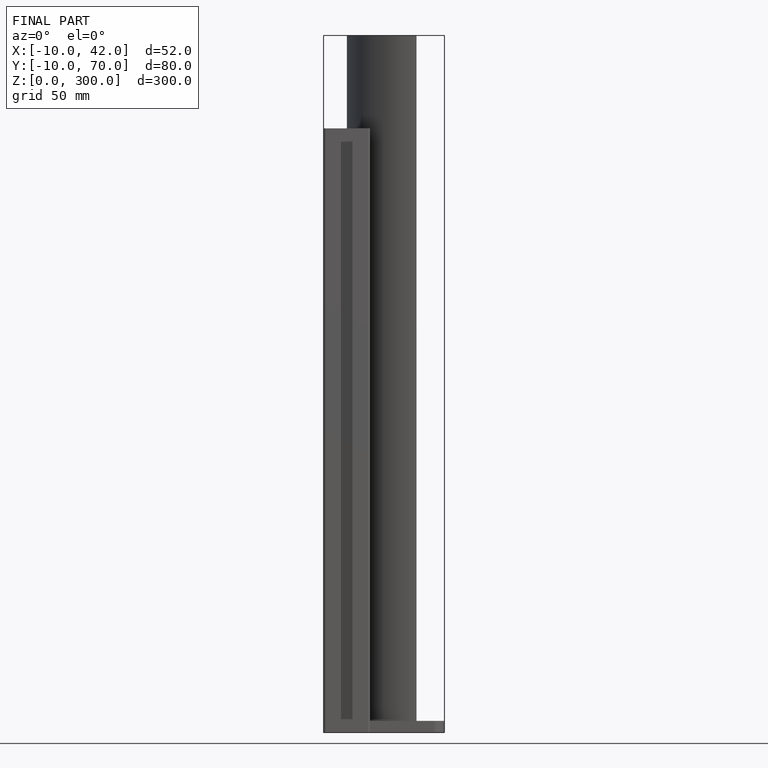
[diagram: finished part — front view with bounding-box wireframe]
